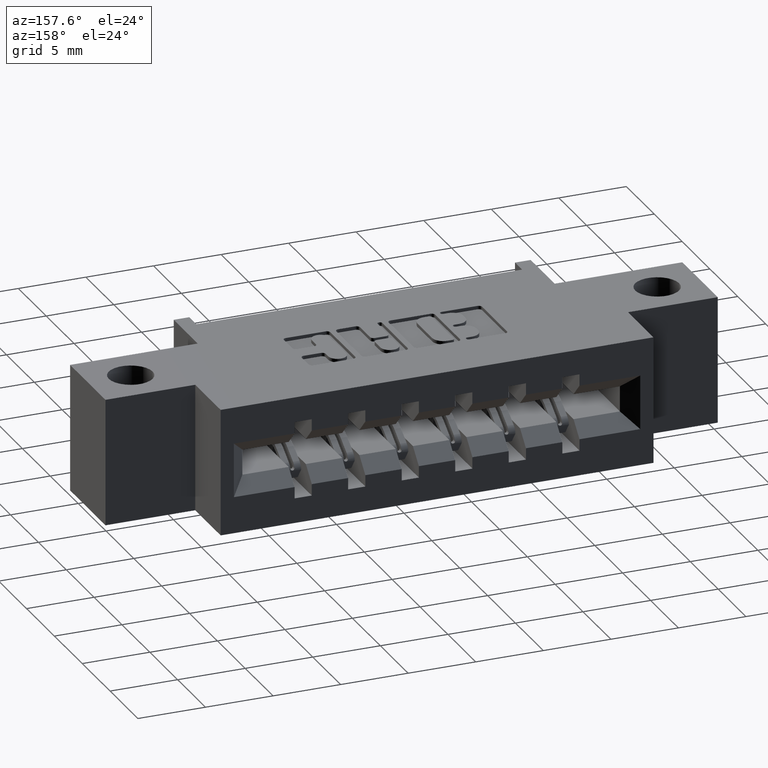
[diagram: clean part render]
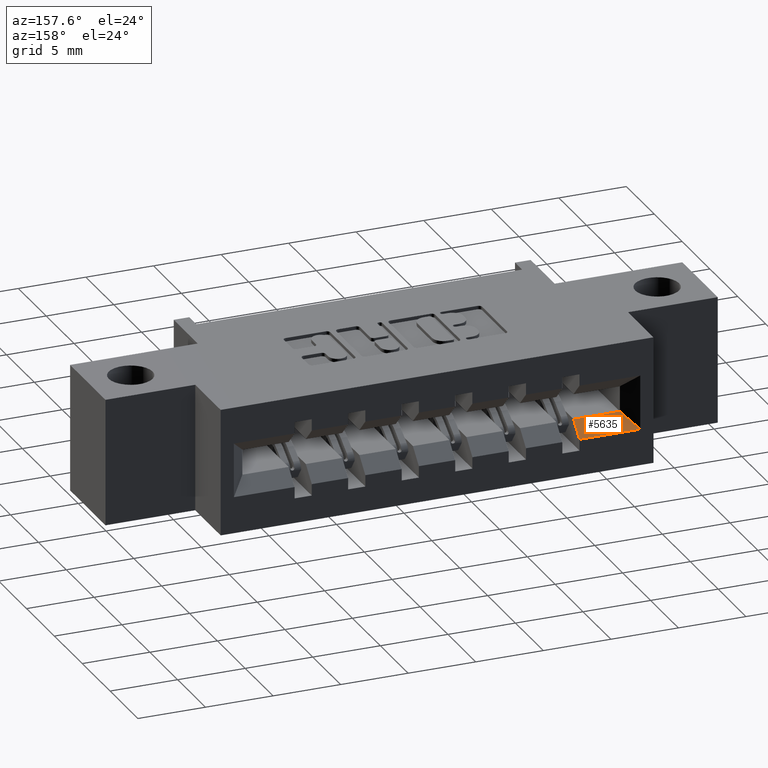
[diagram: same view with one face highlighted and labeled with its STEP entity id]
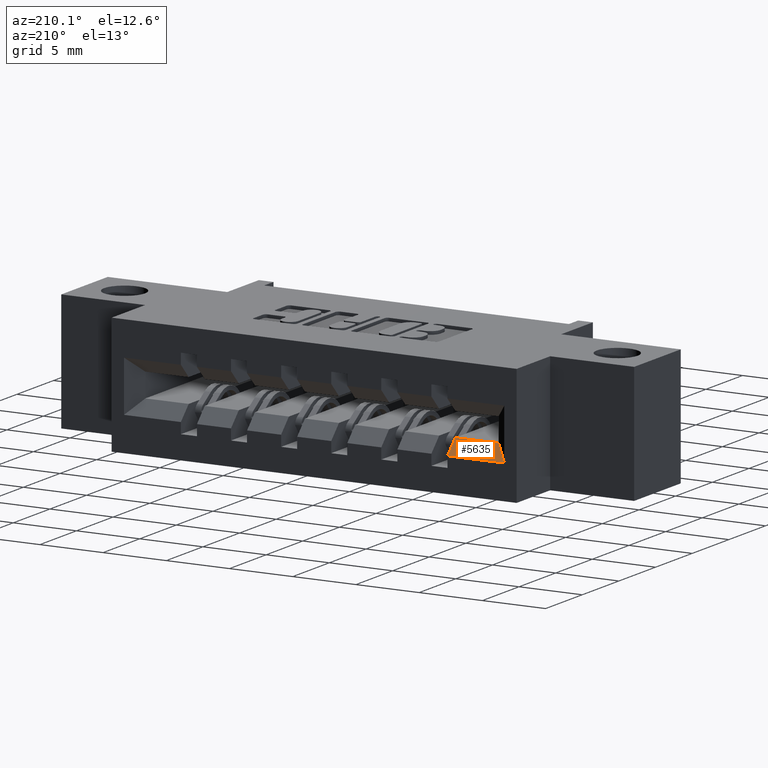
[diagram: same view with one face highlighted and labeled with its STEP entity id]
A machine part, auxiliary view. The second image highlights one B-rep face of the part: STEP entity #5635.
A second angle (auxiliary view) of the same face is appended — the face is thin or edge-on in the first view.
In plain terms, the highlighted planar face has unit normal (0, -0.7071, -0.7071).
Its self-contained STEP definition (entity closure, byte-faithful):
#91 = CARTESIAN_POINT ( 'NONE',  ( -1.316254033310958700E-017, 0.5999999999999999800, -0.2640000000000002900 ) ) ;
#338 = VECTOR ( 'NONE', #842, 39.37007874015748100 ) ;
#516 = ORIENTED_EDGE ( 'NONE', *, *, #6476, .F. ) ;
#586 = DIRECTION ( 'NONE',  ( 8.780492006776654700E-017, -0.7071067811865474600, -0.7071067811865475700 ) ) ;
#695 = FACE_OUTER_BOUND ( 'NONE', #3521, .T. ) ;
#723 = CARTESIAN_POINT ( 'NONE',  ( 0.2999999999999999300, 0.5999999999999999800, -0.2640000000000002900 ) ) ;
#783 = VERTEX_POINT ( 'NONE', #723 ) ;
#842 = DIRECTION ( 'NONE',  ( -0.0000000000000000000, 0.7071067811865475700, -0.7071067811865474600 ) ) ;
#1083 = CARTESIAN_POINT ( 'NONE',  ( 0.4769999999999999200, 0.5579999999999999400, -0.2220000000000002800 ) ) ;
#1467 = LINE ( 'NONE', #91, #3278 ) ;
#1877 = CARTESIAN_POINT ( 'NONE',  ( 0.4769999999999999200, 0.5999999999999999800, -0.2640000000000002900 ) ) ;
#2257 = EDGE_CURVE ( 'NONE', #783, #8385, #7496, .T. ) ;
#2702 = AXIS2_PLACEMENT_3D ( 'NONE', #4175, #586, #7749 ) ;
#3080 = VERTEX_POINT ( 'NONE', #7640 ) ;
#3278 = VECTOR ( 'NONE', #7099, 39.37007874015748100 ) ;
#3365 = ORIENTED_EDGE ( 'NONE', *, *, #3467, .F. ) ;
#3467 = EDGE_CURVE ( 'NONE', #783, #4047, #1467, .T. ) ;
#3521 = EDGE_LOOP ( 'NONE', ( #516, #6587, #3365, #5365 ) ) ;
#3837 = LINE ( 'NONE', #7812, #7224 ) ;
#3900 = VECTOR ( 'NONE', #4473, 39.37007874015748100 ) ;
#3969 = CARTESIAN_POINT ( 'NONE',  ( 0.3419999999999999200, 0.5579999999999999400, -0.2220000000000002800 ) ) ;
#4026 = PLANE ( 'NONE',  #2702 ) ;
#4047 = VERTEX_POINT ( 'NONE', #1877 ) ;
#4175 = CARTESIAN_POINT ( 'NONE',  ( 0.3419999999999999200, 0.5579999999999999400, -0.2220000000000002800 ) ) ;
#4473 = DIRECTION ( 'NONE',  ( 0.5773502691896257300, -0.5773502691896257300, 0.5773502691896257300 ) ) ;
#5365 = ORIENTED_EDGE ( 'NONE', *, *, #2257, .T. ) ;
#5393 = EDGE_CURVE ( 'NONE', #3080, #4047, #5729, .T. ) ;
#5635 = ADVANCED_FACE ( 'NONE', ( #695 ), #4026, .F. ) ;
#5729 = LINE ( 'NONE', #1083, #338 ) ;
#5979 = CARTESIAN_POINT ( 'NONE',  ( 0.3419999999999999200, 0.5579999999999999400, -0.2220000000000002800 ) ) ;
#6476 = EDGE_CURVE ( 'NONE', #3080, #8385, #3837, .T. ) ;
#6587 = ORIENTED_EDGE ( 'NONE', *, *, #5393, .T. ) ;
#7099 = DIRECTION ( 'NONE',  ( 1.000000000000000000, 0.0000000000000000000, 1.241749088029209900E-016 ) ) ;
#7224 = VECTOR ( 'NONE', #7830, 39.37007874015748100 ) ;
#7496 = LINE ( 'NONE', #5979, #3900 ) ;
#7640 = CARTESIAN_POINT ( 'NONE',  ( 0.4769999999999999200, 0.5579999999999999400, -0.2220000000000002800 ) ) ;
#7749 = DIRECTION ( 'NONE',  ( 0.0000000000000000000, 0.7071067811865475700, -0.7071067811865474600 ) ) ;
#7812 = CARTESIAN_POINT ( 'NONE',  ( 0.3419999999999999200, 0.5579999999999999400, -0.2220000000000002800 ) ) ;
#7830 = DIRECTION ( 'NONE',  ( -1.000000000000000000, 0.0000000000000000000, -1.241749088029209900E-016 ) ) ;
#8385 = VERTEX_POINT ( 'NONE', #3969 ) ;